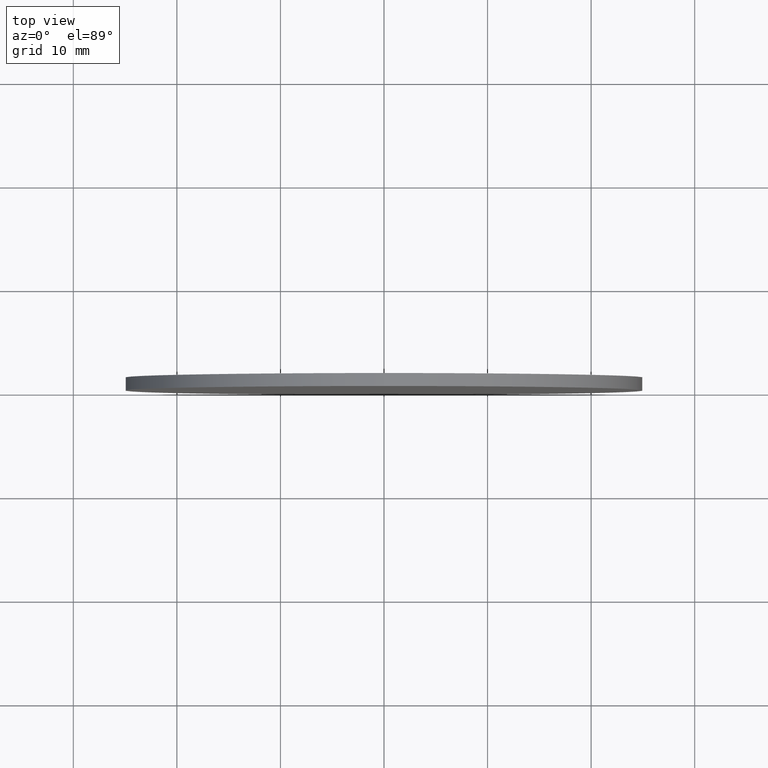
[diagram: clean part render]
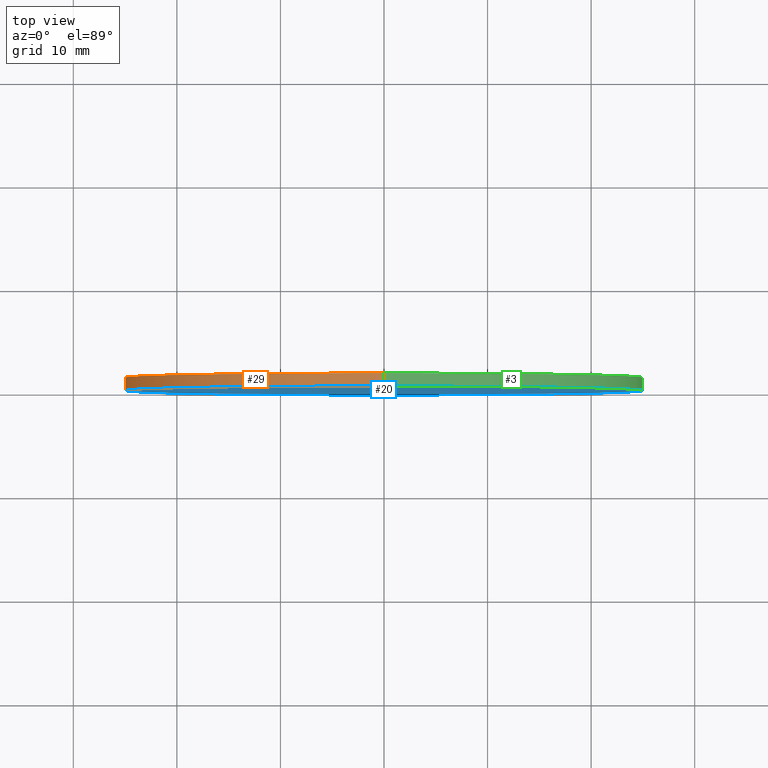
[diagram: same view with three faces highlighted in distinct colors, each labeled with its STEP entity id]
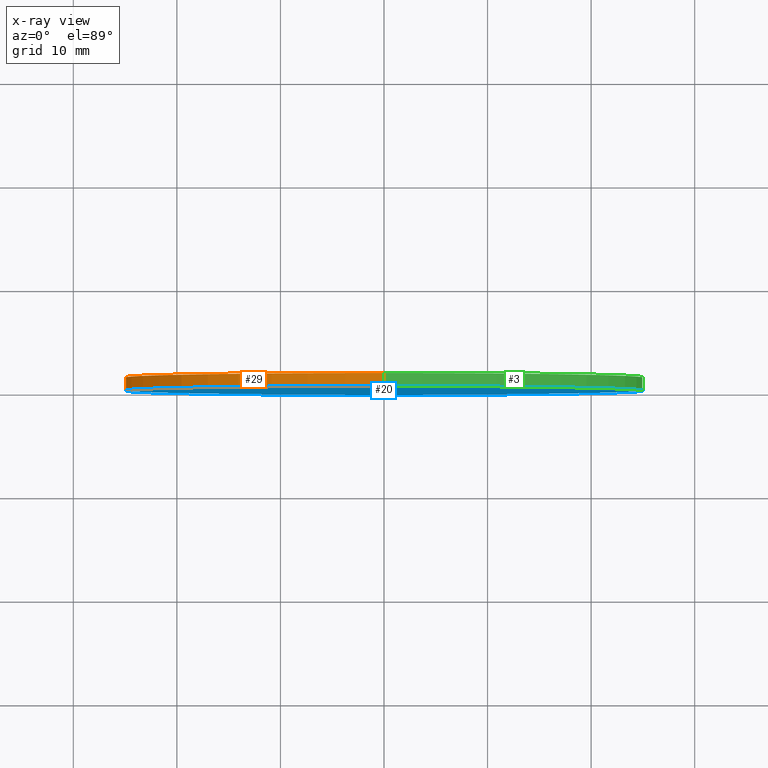
[diagram: x-ray of the same camera — body ghosted, the three highlighted faces saturated]
A machine part, top view with three faces highlighted in distinct colors.
The next image is the same camera in x-ray (body ghosted, the three faces saturated) — at least one of them is partly hidden behind the body in this view.
Their STEP definitions:

[orange] entity #29 — the highlighted cylindrical surface (partial cylindrical patch) has radius 25 mm, axis along (-0, -1, -0).
#4 = EDGE_CURVE ( 'NONE', #11, #16, #99, .T. ) ;
#7 = VECTOR ( 'NONE', #109, 1000.000000000000000 ) ;
#11 = VERTEX_POINT ( 'NONE', #137 ) ;
#12 = AXIS2_PLACEMENT_3D ( 'NONE', #52, #44, #66 ) ;
#16 = VERTEX_POINT ( 'NONE', #30 ) ;
#19 = ORIENTED_EDGE ( 'NONE', *, *, #105, .T. ) ;
#26 = EDGE_CURVE ( 'NONE', #67, #48, #119, .T. ) ;
#27 = ORIENTED_EDGE ( 'NONE', *, *, #26, .T. ) ;
#29 = ADVANCED_FACE ( 'NONE', ( #77 ), #108, .T. ) ;
#30 = CARTESIAN_POINT ( 'NONE',  ( 3.061616997868383000E-015, 0.0000000000000000000, 25.00000000000000000 ) ) ;
#32 = DIRECTION ( 'NONE',  ( 0.0000000000000000000, 0.0000000000000000000, -1.000000000000000000 ) ) ;
#35 = VECTOR ( 'NONE', #50, 1000.000000000000000 ) ;
#38 = CARTESIAN_POINT ( 'NONE',  ( 0.0000000000000000000, 0.0000000000000000000, -25.00000000000000000 ) ) ;
#44 = DIRECTION ( 'NONE',  ( 0.0000000000000000000, 1.000000000000000000, 0.0000000000000000000 ) ) ;
#48 = VERTEX_POINT ( 'NONE', #38 ) ;
#50 = DIRECTION ( 'NONE',  ( -0.0000000000000000000, -1.000000000000000000, -0.0000000000000000000 ) ) ;
#52 = CARTESIAN_POINT ( 'NONE',  ( 0.0000000000000000000, 1.250000000000000000, 0.0000000000000000000 ) ) ;
#59 = CARTESIAN_POINT ( 'NONE',  ( 3.061616997868383000E-015, 1.250000000000000000, 25.00000000000000000 ) ) ;
#63 = CIRCLE ( 'NONE', #80, 25.00000000000000000 ) ;
#66 = DIRECTION ( 'NONE',  ( 0.0000000000000000000, 0.0000000000000000000, 1.000000000000000000 ) ) ;
#67 = VERTEX_POINT ( 'NONE', #126 ) ;
#73 = DIRECTION ( 'NONE',  ( -0.0000000000000000000, -1.000000000000000000, -0.0000000000000000000 ) ) ;
#77 = FACE_OUTER_BOUND ( 'NONE', #131, .T. ) ;
#80 = AXIS2_PLACEMENT_3D ( 'NONE', #140, #81, #103 ) ;
#81 = DIRECTION ( 'NONE',  ( 0.0000000000000000000, 1.000000000000000000, 0.0000000000000000000 ) ) ;
#83 = CIRCLE ( 'NONE', #12, 25.00000000000000000 ) ;
#89 = CARTESIAN_POINT ( 'NONE',  ( 0.0000000000000000000, 1.250000000000000000, 0.0000000000000000000 ) ) ;
#99 = LINE ( 'NONE', #59, #35 ) ;
#103 = DIRECTION ( 'NONE',  ( 0.0000000000000000000, 0.0000000000000000000, 1.000000000000000000 ) ) ;
#105 = EDGE_CURVE ( 'NONE', #48, #16, #63, .T. ) ;
#108 = CYLINDRICAL_SURFACE ( 'NONE', #112, 25.00000000000000000 ) ;
#109 = DIRECTION ( 'NONE',  ( -0.0000000000000000000, -1.000000000000000000, -0.0000000000000000000 ) ) ;
#112 = AXIS2_PLACEMENT_3D ( 'NONE', #89, #73, #32 ) ;
#113 = CARTESIAN_POINT ( 'NONE',  ( 0.0000000000000000000, 1.250000000000000000, -25.00000000000000000 ) ) ;
#115 = EDGE_CURVE ( 'NONE', #67, #11, #83, .T. ) ;
#117 = ORIENTED_EDGE ( 'NONE', *, *, #4, .F. ) ;
#119 = LINE ( 'NONE', #113, #7 ) ;
#126 = CARTESIAN_POINT ( 'NONE',  ( 0.0000000000000000000, 1.250000000000000000, -25.00000000000000000 ) ) ;
#131 = EDGE_LOOP ( 'NONE', ( #117, #135, #27, #19 ) ) ;
#135 = ORIENTED_EDGE ( 'NONE', *, *, #115, .F. ) ;
#137 = CARTESIAN_POINT ( 'NONE',  ( 3.061616997868383000E-015, 1.250000000000000000, 25.00000000000000000 ) ) ;
#140 = CARTESIAN_POINT ( 'NONE',  ( 0.0000000000000000000, 0.0000000000000000000, 0.0000000000000000000 ) ) ;

[blue] entity #20 — the highlighted planar face has unit normal (0, 1, 0).
#6 = PLANE ( 'NONE',  #136 ) ;
#16 = VERTEX_POINT ( 'NONE', #30 ) ;
#20 = ADVANCED_FACE ( 'NONE', ( #82 ), #6, .F. ) ;
#30 = CARTESIAN_POINT ( 'NONE',  ( 3.061616997868383000E-015, 0.0000000000000000000, 25.00000000000000000 ) ) ;
#38 = CARTESIAN_POINT ( 'NONE',  ( 0.0000000000000000000, 0.0000000000000000000, -25.00000000000000000 ) ) ;
#40 = EDGE_LOOP ( 'NONE', ( #42, #125 ) ) ;
#42 = ORIENTED_EDGE ( 'NONE', *, *, #105, .F. ) ;
#43 = DIRECTION ( 'NONE',  ( 0.0000000000000000000, 0.0000000000000000000, 1.000000000000000000 ) ) ;
#48 = VERTEX_POINT ( 'NONE', #38 ) ;
#63 = CIRCLE ( 'NONE', #80, 25.00000000000000000 ) ;
#68 = EDGE_CURVE ( 'NONE', #16, #48, #97, .T. ) ;
#80 = AXIS2_PLACEMENT_3D ( 'NONE', #140, #81, #103 ) ;
#81 = DIRECTION ( 'NONE',  ( 0.0000000000000000000, 1.000000000000000000, 0.0000000000000000000 ) ) ;
#82 = FACE_OUTER_BOUND ( 'NONE', #40, .T. ) ;
#85 = AXIS2_PLACEMENT_3D ( 'NONE', #132, #124, #43 ) ;
#93 = DIRECTION ( 'NONE',  ( 0.0000000000000000000, 1.000000000000000000, 0.0000000000000000000 ) ) ;
#97 = CIRCLE ( 'NONE', #85, 25.00000000000000000 ) ;
#100 = CARTESIAN_POINT ( 'NONE',  ( 0.0000000000000000000, 0.0000000000000000000, 0.0000000000000000000 ) ) ;
#103 = DIRECTION ( 'NONE',  ( 0.0000000000000000000, 0.0000000000000000000, 1.000000000000000000 ) ) ;
#105 = EDGE_CURVE ( 'NONE', #48, #16, #63, .T. ) ;
#106 = DIRECTION ( 'NONE',  ( 0.0000000000000000000, -0.0000000000000000000, 1.000000000000000000 ) ) ;
#124 = DIRECTION ( 'NONE',  ( 0.0000000000000000000, 1.000000000000000000, 0.0000000000000000000 ) ) ;
#125 = ORIENTED_EDGE ( 'NONE', *, *, #68, .F. ) ;
#132 = CARTESIAN_POINT ( 'NONE',  ( 0.0000000000000000000, 0.0000000000000000000, 0.0000000000000000000 ) ) ;
#136 = AXIS2_PLACEMENT_3D ( 'NONE', #100, #93, #106 ) ;
#140 = CARTESIAN_POINT ( 'NONE',  ( 0.0000000000000000000, 0.0000000000000000000, 0.0000000000000000000 ) ) ;

[green] entity #3 — the highlighted cylindrical surface (partial cylindrical patch) has radius 25 mm, axis along (-0, -1, -0).
#3 = ADVANCED_FACE ( 'NONE', ( #84 ), #107, .T. ) ;
#4 = EDGE_CURVE ( 'NONE', #11, #16, #99, .T. ) ;
#7 = VECTOR ( 'NONE', #109, 1000.000000000000000 ) ;
#9 = DIRECTION ( 'NONE',  ( 0.0000000000000000000, 0.0000000000000000000, -1.000000000000000000 ) ) ;
#11 = VERTEX_POINT ( 'NONE', #137 ) ;
#13 = CIRCLE ( 'NONE', #14, 25.00000000000000000 ) ;
#14 = AXIS2_PLACEMENT_3D ( 'NONE', #110, #114, #129 ) ;
#16 = VERTEX_POINT ( 'NONE', #30 ) ;
#26 = EDGE_CURVE ( 'NONE', #67, #48, #119, .T. ) ;
#30 = CARTESIAN_POINT ( 'NONE',  ( 3.061616997868383000E-015, 0.0000000000000000000, 25.00000000000000000 ) ) ;
#35 = VECTOR ( 'NONE', #50, 1000.000000000000000 ) ;
#38 = CARTESIAN_POINT ( 'NONE',  ( 0.0000000000000000000, 0.0000000000000000000, -25.00000000000000000 ) ) ;
#43 = DIRECTION ( 'NONE',  ( 0.0000000000000000000, 0.0000000000000000000, 1.000000000000000000 ) ) ;
#48 = VERTEX_POINT ( 'NONE', #38 ) ;
#50 = DIRECTION ( 'NONE',  ( -0.0000000000000000000, -1.000000000000000000, -0.0000000000000000000 ) ) ;
#56 = ORIENTED_EDGE ( 'NONE', *, *, #68, .T. ) ;
#59 = CARTESIAN_POINT ( 'NONE',  ( 3.061616997868383000E-015, 1.250000000000000000, 25.00000000000000000 ) ) ;
#67 = VERTEX_POINT ( 'NONE', #126 ) ;
#68 = EDGE_CURVE ( 'NONE', #16, #48, #97, .T. ) ;
#69 = AXIS2_PLACEMENT_3D ( 'NONE', #120, #118, #9 ) ;
#84 = FACE_OUTER_BOUND ( 'NONE', #111, .T. ) ;
#85 = AXIS2_PLACEMENT_3D ( 'NONE', #132, #124, #43 ) ;
#88 = ORIENTED_EDGE ( 'NONE', *, *, #92, .F. ) ;
#91 = ORIENTED_EDGE ( 'NONE', *, *, #4, .T. ) ;
#92 = EDGE_CURVE ( 'NONE', #11, #67, #13, .T. ) ;
#94 = ORIENTED_EDGE ( 'NONE', *, *, #26, .F. ) ;
#97 = CIRCLE ( 'NONE', #85, 25.00000000000000000 ) ;
#99 = LINE ( 'NONE', #59, #35 ) ;
#107 = CYLINDRICAL_SURFACE ( 'NONE', #69, 25.00000000000000000 ) ;
#109 = DIRECTION ( 'NONE',  ( -0.0000000000000000000, -1.000000000000000000, -0.0000000000000000000 ) ) ;
#110 = CARTESIAN_POINT ( 'NONE',  ( 0.0000000000000000000, 1.250000000000000000, 0.0000000000000000000 ) ) ;
#111 = EDGE_LOOP ( 'NONE', ( #88, #91, #56, #94 ) ) ;
#113 = CARTESIAN_POINT ( 'NONE',  ( 0.0000000000000000000, 1.250000000000000000, -25.00000000000000000 ) ) ;
#114 = DIRECTION ( 'NONE',  ( 0.0000000000000000000, 1.000000000000000000, 0.0000000000000000000 ) ) ;
#118 = DIRECTION ( 'NONE',  ( -0.0000000000000000000, -1.000000000000000000, -0.0000000000000000000 ) ) ;
#119 = LINE ( 'NONE', #113, #7 ) ;
#120 = CARTESIAN_POINT ( 'NONE',  ( 0.0000000000000000000, 1.250000000000000000, 0.0000000000000000000 ) ) ;
#124 = DIRECTION ( 'NONE',  ( 0.0000000000000000000, 1.000000000000000000, 0.0000000000000000000 ) ) ;
#126 = CARTESIAN_POINT ( 'NONE',  ( 0.0000000000000000000, 1.250000000000000000, -25.00000000000000000 ) ) ;
#129 = DIRECTION ( 'NONE',  ( 0.0000000000000000000, 0.0000000000000000000, 1.000000000000000000 ) ) ;
#132 = CARTESIAN_POINT ( 'NONE',  ( 0.0000000000000000000, 0.0000000000000000000, 0.0000000000000000000 ) ) ;
#137 = CARTESIAN_POINT ( 'NONE',  ( 3.061616997868383000E-015, 1.250000000000000000, 25.00000000000000000 ) ) ;